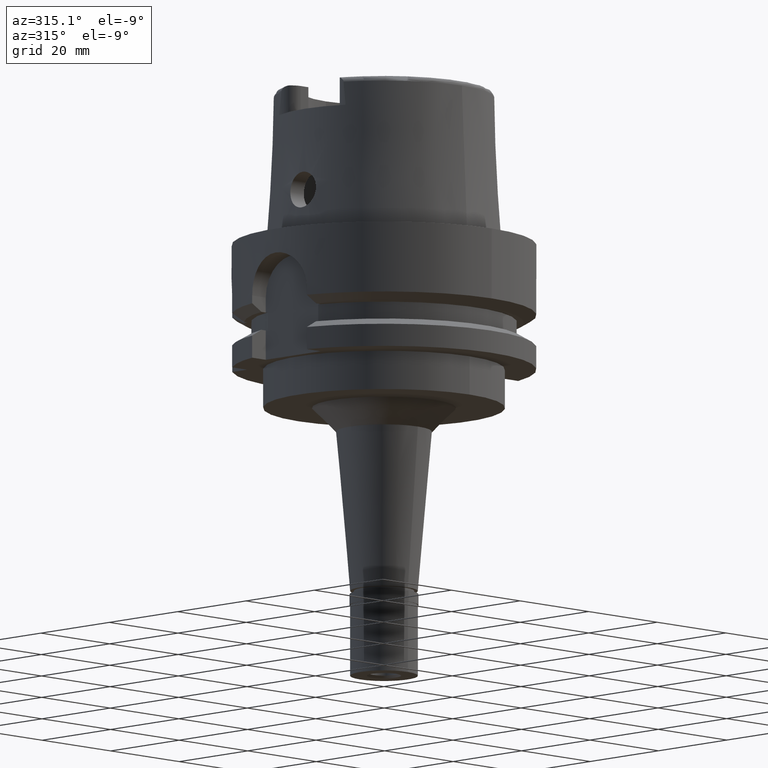
[diagram: clean part render]
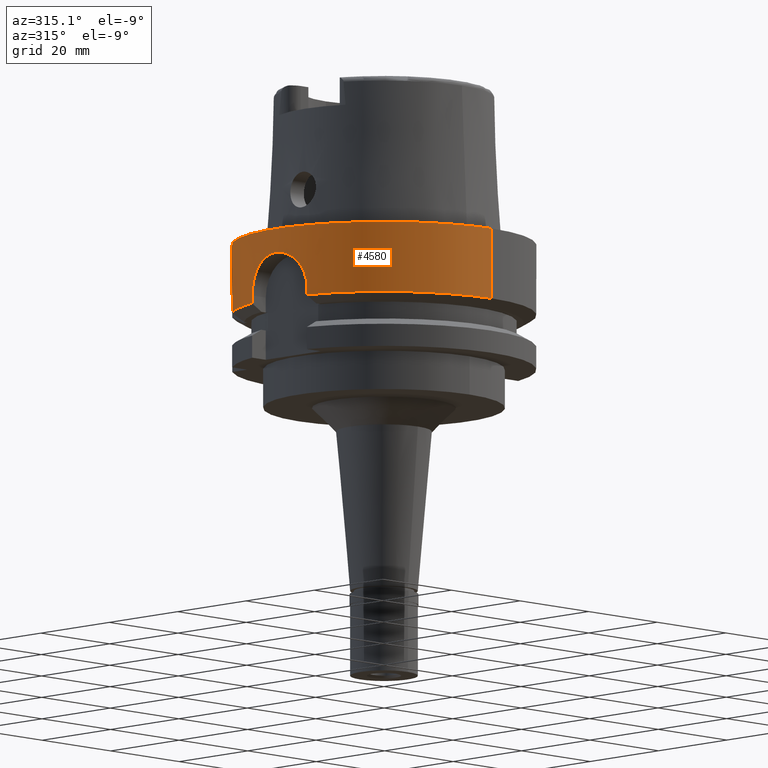
[diagram: same view with one face highlighted and labeled with its STEP entity id]
A machine part, auxiliary view. The second image highlights one B-rep face of the part: STEP entity #4580.
In plain terms, the highlighted cylindrical surface (partial cylindrical patch) has radius 31.5 mm, axis along (0, 0, -1).
Its self-contained STEP definition (entity closure, byte-faithful):
#2 = CIRCLE ( 'NONE', #1885, 31.50000000000000000 ) ;
#6 = CARTESIAN_POINT ( 'NONE',  ( -24.33618704727999926, 20.00000000000000000, -12.11171390365999834 ) ) ;
#63 = VERTEX_POINT ( 'NONE', #5252 ) ;
#83 = CARTESIAN_POINT ( 'NONE',  ( -22.42393119588176376, 22.12296565880928512, -6.683206095181872364 ) ) ;
#101 = CARTESIAN_POINT ( 'NONE',  ( 0.0000000000000000000, 31.50000000000000000, -5.210646728906999149E-14 ) ) ;
#127 = CARTESIAN_POINT ( 'NONE',  ( -30.81885635104165644, 6.516947870063453330, -8.352431642846200432 ) ) ;
#239 = CARTESIAN_POINT ( 'NONE',  ( -30.47046940401123649, 7.987562577556124310, -12.48389669311093009 ) ) ;
#248 = ORIENTED_EDGE ( 'NONE', *, *, #5236, .F. ) ;
#264 = CARTESIAN_POINT ( 'NONE',  ( -31.39671493540918590, -2.551760372348841788, -5.416713628323214458 ) ) ;
#268 = CARTESIAN_POINT ( 'NONE',  ( 0.0000000000000000000, 0.0000000000000000000, -8.526512829120999020E-14 ) ) ;
#274 = B_SPLINE_CURVE_WITH_KNOTS ( 'NONE', 3,
 ( #2247, #2546, #1216, #5139, #1676, #379, #4284, #858, #825, #4849, #3841, #3517, #3000, #2969, #2945, #1267, #3388, #2088, #510, #2573, #4253, #3940, #2221, #4714, #83, #3576, #410, #4654, #5238, #3808, #1372, #3967, #5539, #5116 ),
 .UNSPECIFIED., .F., .F.,
 ( 4, 2, 2, 1, 2, 2, 2, 2, 1, 1, 2, 2, 2, 2, 1, 1, 1, 2, 2, 4 ),
 ( 0.0000000000000000000, 0.1250000000000000555, 0.1874999999999996947, 0.2187499999999992784, 0.2343749999999991118, 0.2499999999999989175, 0.3749999999999982236, 0.4374999999999975575, 0.4687499999999972800, 0.4843749999999971134, 0.4921874999999972800, 0.4999999999999974465, 0.6249999999999994449, 0.6875000000000007772, 0.7187500000000014433, 0.7343750000000011102, 0.7421875000000013323, 0.7460937500000014433, 0.7500000000000015543, 1.000000000000000000 ),
 .UNSPECIFIED. ) ;
#294 = CARTESIAN_POINT ( 'NONE',  ( -30.72496427306840872, -6.945683112383507662, -9.021600376707157309 ) ) ;
#305 = ORIENTED_EDGE ( 'NONE', *, *, #545, .F. ) ;
#309 = EDGE_CURVE ( 'NONE', #1736, #2114, #274, .T. ) ;
#328 = CARTESIAN_POINT ( 'NONE',  ( -31.24778611378783211, 3.985028085199429970, -6.058127273272806868 ) ) ;
#332 = DIRECTION ( 'NONE',  ( 1.662386508811991509E-08, -6.330603035294974936E-08, 0.9999999999999978906 ) ) ;
#376 = CARTESIAN_POINT ( 'NONE',  ( -31.49677497999002540, -0.5190878657946060848, -5.012592346184119307 ) ) ;
#379 = CARTESIAN_POINT ( 'NONE',  ( -24.19538396489980059, 20.17014702692039663, -10.46826242228632609 ) ) ;
#410 = CARTESIAN_POINT ( 'NONE',  ( -22.22169668895883632, 22.32599394237791302, -6.471750597271110017 ) ) ;
#465 = VECTOR ( 'NONE', #913, 999.9999999999998863 ) ;
#480 = ORIENTED_EDGE ( 'NONE', *, *, #3311, .T. ) ;
#510 = CARTESIAN_POINT ( 'NONE',  ( -23.42376758610688370, 21.06127751492621769, -8.129929778619418457 ) ) ;
#545 = EDGE_CURVE ( 'NONE', #1964, #2648, #4934, .T. ) ;
#555 = CIRCLE ( 'NONE', #4783, 31.50000000000000000 ) ;
#603 = CARTESIAN_POINT ( 'NONE',  ( -31.02187907461290806, 5.470772986003484384, -7.156983136260197220 ) ) ;
#615 = DIRECTION ( 'NONE',  ( 0.0000000000000000000, -1.000000000000000000, 0.0000000000000000000 ) ) ;
#682 = CARTESIAN_POINT ( 'NONE',  ( -31.30329594183399422, -3.522533146540007376, -5.812390860483388266 ) ) ;
#703 = CARTESIAN_POINT ( 'NONE',  ( 0.0000000000000000000, -31.50000000000000000, -5.210646728906999149E-14 ) ) ;
#709 = CARTESIAN_POINT ( 'NONE',  ( -31.43404329783953344, 2.052651452422835643, -5.263364843615333299 ) ) ;
#740 = CARTESIAN_POINT ( 'NONE',  ( -31.44966231046775107, 1.798303139504380255, -5.200421182018059696 ) ) ;
#794 = DIRECTION ( 'NONE',  ( -0.9672125547036138915, -0.2539682539683034701, 0.0000000000000000000 ) ) ;
#825 = CARTESIAN_POINT ( 'NONE',  ( -24.12938252003408479, 20.24902381741144453, -10.13074365159392798 ) ) ;
#849 = CARTESIAN_POINT ( 'NONE',  ( 0.0000000000000000000, 0.0000000000000000000, -14.62250092523999889 ) ) ;
#858 = CARTESIAN_POINT ( 'NONE',  ( -24.14698290533160829, 20.22803438277437138, -10.21476230509764527 ) ) ;
#866 = ORIENTED_EDGE ( 'NONE', *, *, #2269, .F. ) ;
#889 = CARTESIAN_POINT ( 'NONE',  ( -20.00000000000000000, 24.33618704727999926, -5.000000000001000089 ) ) ;
#913 = DIRECTION ( 'NONE',  ( 3.142283928301055950E-07, 2.582394104988045658E-07, -0.9999999999999173994 ) ) ;
#1003 = VERTEX_POINT ( 'NONE', #3059 ) ;
#1011 = CARTESIAN_POINT ( 'NONE',  ( -30.59375341721909081, 7.502186701454739648, -10.20961224727279415 ) ) ;
#1063 = CARTESIAN_POINT ( 'NONE',  ( -30.72362744161308967, 6.956923324143974519, -9.014860810156298143 ) ) ;
#1129 = CARTESIAN_POINT ( 'NONE',  ( -31.48408220032727201, -1.033854126836437626, -5.062799230808407103 ) ) ;
#1153 = CARTESIAN_POINT ( 'NONE',  ( -30.46719547316000032, -8.000000000000000000, -13.00000000000000000 ) ) ;
#1183 = CARTESIAN_POINT ( 'NONE',  ( -31.28954085693241183, 3.637070170559372428, -5.873293608094983576 ) ) ;
#1188 = DIRECTION ( 'NONE',  ( 0.0000000000000000000, 0.0000000000000000000, 1.000000000000000000 ) ) ;
#1201 = ORIENTED_EDGE ( 'NONE', *, *, #309, .F. ) ;
#1209 = DIRECTION ( 'NONE',  ( 7.688788050064650779E-08, 2.928240117509864940E-07, -0.9999999999999541478 ) ) ;
#1216 = CARTESIAN_POINT ( 'NONE',  ( -24.31741330296263826, 20.02299288713010839, -11.41278700497229970 ) ) ;
#1254 = CARTESIAN_POINT ( 'NONE',  ( 0.0000000000000000000, 0.0000000000000000000, -14.62250092523999889 ) ) ;
#1267 = CARTESIAN_POINT ( 'NONE',  ( -23.53769548494326713, 20.93402648824516987, -8.358664469633170668 ) ) ;
#1332 = VERTEX_POINT ( 'NONE', #5091 ) ;
#1342 = ORIENTED_EDGE ( 'NONE', *, *, #3821, .F. ) ;
#1343 = CYLINDRICAL_SURFACE ( 'NONE', #4147, 31.50000000000000000 ) ;
#1372 = CARTESIAN_POINT ( 'NONE',  ( -22.11781925705654928, 22.42882633936847370, -6.370443672100182475 ) ) ;
#1388 = CARTESIAN_POINT ( 'NONE',  ( -30.53486776371219236, 7.738073463297647336, -10.95272763081510270 ) ) ;
#1414 = CARTESIAN_POINT ( 'NONE',  ( -31.12249084679720568, 4.863351863544854936, -6.646597155386570144 ) ) ;
#1521 = CARTESIAN_POINT ( 'NONE',  ( -31.32926138260560478, -3.284444989622653743, -5.700584998845050322 ) ) ;
#1550 = CARTESIAN_POINT ( 'NONE',  ( -31.34136434296008744, 3.159692071438414462, -5.649299242002840060 ) ) ;
#1583 = CARTESIAN_POINT ( 'NONE',  ( -31.15515489151722761, -4.653652403097416901, -6.487463098714763454 ) ) ;
#1637 = CARTESIAN_POINT ( 'NONE',  ( -30.53478131667754525, -7.738413905104802204, -10.95404087152322603 ) ) ;
#1676 = CARTESIAN_POINT ( 'NONE',  ( -24.23762488961385841, 20.11943627606970608, -10.72360843224762128 ) ) ;
#1695 = CARTESIAN_POINT ( 'NONE',  ( -30.46719547316000032, 8.000000000000000000, -13.00000000000000000 ) ) ;
#1736 = VERTEX_POINT ( 'NONE', #6 ) ;
#1838 = CARTESIAN_POINT ( 'NONE',  ( -30.85175722334937731, 6.359895374865690343, -8.139646148416114002 ) ) ;
#1861 = CARTESIAN_POINT ( 'NONE',  ( -30.46719547317000121, -8.000000000001000089, -14.62250092523999889 ) ) ;
#1885 = AXIS2_PLACEMENT_3D ( 'NONE', #1254, #3430, #2958 ) ;
#1903 = FACE_OUTER_BOUND ( 'NONE', #1954, .T. ) ;
#1954 = EDGE_LOOP ( 'NONE', ( #1201, #866, #5251, #2743, #3238, #248, #4289, #305, #2639, #3425, #480, #1342 ) ) ;
#1964 = VERTEX_POINT ( 'NONE', #4305 ) ;
#1971 = CARTESIAN_POINT ( 'NONE',  ( -31.21750876316024303, -4.210714186330711151, -6.196545001673451125 ) ) ;
#2003 = CIRCLE ( 'NONE', #2735, 31.50000000000000711 ) ;
#2004 = CARTESIAN_POINT ( 'NONE',  ( -31.17125954396172816, 4.540361878089598235, -6.412027064735279502 ) ) ;
#2030 = CARTESIAN_POINT ( 'NONE',  ( -24.33618704727999926, 20.00000000000000000, -14.62250092523999889 ) ) ;
#2034 = CARTESIAN_POINT ( 'NONE',  ( -31.26152885554538230, -3.870459631817934731, -5.997300790449740404 ) ) ;
#2060 = CARTESIAN_POINT ( 'NONE',  ( -30.57221970764694774, -7.589156868282732837, -10.45567407900735368 ) ) ;
#2088 = CARTESIAN_POINT ( 'NONE',  ( -23.44315733182589412, 21.03969576166392130, -8.167776853820770455 ) ) ;
#2114 = VERTEX_POINT ( 'NONE', #5474 ) ;
#2176 = CIRCLE ( 'NONE', #4704, 31.50000000000000000 ) ;
#2189 = CARTESIAN_POINT ( 'NONE',  ( -24.33618704727999926, 20.00000000000000000, -12.11171390365999834 ) ) ;
#2221 = CARTESIAN_POINT ( 'NONE',  ( -22.71655124985572982, 21.82280581254263652, -7.024865128160966421 ) ) ;
#2247 = CARTESIAN_POINT ( 'NONE',  ( -24.33618704727999926, 20.00000000000000000, -12.11171390365999834 ) ) ;
#2269 = EDGE_CURVE ( 'NONE', #63, #1736, #3459, .T. ) ;
#2319 = CARTESIAN_POINT ( 'NONE',  ( -31.05592143672404148, 5.274725093390645547, -6.979327917315838015 ) ) ;
#2399 = CARTESIAN_POINT ( 'NONE',  ( -30.59373675492793865, -7.502246412070891601, -10.20989868051045946 ) ) ;
#2416 = DIRECTION ( 'NONE',  ( 0.0000000000000000000, -2.672583210396999878E-14, -1.000000000000000000 ) ) ;
#2422 = CARTESIAN_POINT ( 'NONE',  ( -30.75521152764444466, -6.810977723647452464, -8.795226243407100242 ) ) ;
#2445 = CARTESIAN_POINT ( 'NONE',  ( 0.0000000000000000000, 31.50000000000000000, -8.526512829120999020E-14 ) ) ;
#2453 = CARTESIAN_POINT ( 'NONE',  ( -31.48718090486001131, 1.033466574519090964, -5.050045388237518473 ) ) ;
#2483 = CARTESIAN_POINT ( 'NONE',  ( -30.46719547316398291, -8.000000000001039169, -12.48317114867933952 ) ) ;
#2498 = B_SPLINE_CURVE_WITH_KNOTS ( 'NONE', 3,
 ( #3636, #5366, #239, #4942, #4393, #3977, #1388, #4457, #1011, #5304, #1063, #127, #1838, #3563, #2746, #603, #2319, #5281, #1414, #3140, #2004, #5002, #328, #1183, #4193, #5050, #1550, #4595, #3325, #709, #740, #2453, #3720, #4168, #376, #1129, #3661, #5453, #4538, #264, #5390, #3689, #1521, #682, #2034, #4137, #1971, #3273, #1583, #5423, #2856, #2943, #4564, #3301, #2422, #294, #5477, #5026, #2399, #2060, #1637, #4624, #4112, #2483, #1153 ),
 .UNSPECIFIED., .F., .F.,
 ( 4, 2, 2, 2, 2, 2, 2, 2, 2, 2, 2, 2, 2, 2, 2, 2, 2, 2, 2, 1, 2, 2, 2, 2, 2, 2, 2, 2, 2, 2, 2, 2, 4 ),
 ( 0.0000000000000000000, 0.03125000000000009714, 0.06250000000000019429, 0.09375000000000029143, 0.1250000000000003886, 0.1875000000000006661, 0.2187500000000006661, 0.2500000000000006661, 0.2812500000000007216, 0.2968750000000007216, 0.3125000000000006661, 0.3437500000000006106, 0.3593750000000006106, 0.3750000000000006106, 0.4062500000000005551, 0.4375000000000004441, 0.5000000000000003331, 0.5312500000000003331, 0.5625000000000003331, 0.5937500000000003331, 0.6093750000000002220, 0.6250000000000001110, 0.6562500000000001110, 0.6718750000000002220, 0.6875000000000002220, 0.7187500000000002220, 0.7500000000000002220, 0.8125000000000000000, 0.8437500000000000000, 0.8749999999999998890, 0.9062499999999998890, 0.9374999999999998890, 1.000000000000000000 ),
 .UNSPECIFIED. ) ;
#2546 = CARTESIAN_POINT ( 'NONE',  ( -24.33618704728000282, 20.00000000000000711, -11.76177398108625205 ) ) ;
#2548 = DIRECTION ( 'NONE',  ( -0.7725773665802099233, 0.6349206349206079070, 0.0000000000000000000 ) ) ;
#2573 = CARTESIAN_POINT ( 'NONE',  ( -23.41480056204280302, 21.07124600372210921, -8.112598717142777360 ) ) ;
#2639 = ORIENTED_EDGE ( 'NONE', *, *, #5075, .T. ) ;
#2648 = VERTEX_POINT ( 'NONE', #5204 ) ;
#2679 = VERTEX_POINT ( 'NONE', #3424 ) ;
#2735 = AXIS2_PLACEMENT_3D ( 'NONE', #3330, #1188, #2548 ) ;
#2743 = ORIENTED_EDGE ( 'NONE', *, *, #3035, .F. ) ;
#2746 = CARTESIAN_POINT ( 'NONE',  ( -30.95339523289258210, 5.845824316607018289, -7.532364397223996200 ) ) ;
#2762 = DIRECTION ( 'NONE',  ( 0.0000000000000000000, 0.0000000000000000000, -1.000000000000000000 ) ) ;
#2856 = CARTESIAN_POINT ( 'NONE',  ( -31.05571261454898035, -5.275953089424241682, -6.980406702780817874 ) ) ;
#2910 = VECTOR ( 'NONE', #332, 1000.000000000000114 ) ;
#2943 = CARTESIAN_POINT ( 'NONE',  ( -31.02184408994662945, -5.471005329709403675, -7.157139608571637446 ) ) ;
#2945 = CARTESIAN_POINT ( 'NONE',  ( -23.59119909214344446, 20.87366618392890416, -8.475360394206475689 ) ) ;
#2958 = DIRECTION ( 'NONE',  ( 0.0000000000000000000, 1.000000000000000000, 0.0000000000000000000 ) ) ;
#2969 = CARTESIAN_POINT ( 'NONE',  ( -23.69447380257824420, 20.75659041346670719, -8.711152247566838369 ) ) ;
#2972 = LINE ( 'NONE', #4599, #2910 ) ;
#2975 = EDGE_CURVE ( 'NONE', #5432, #2648, #555, .T. ) ;
#3000 = CARTESIAN_POINT ( 'NONE',  ( -23.75834693758074323, 20.68340060219739129, -8.871548500384792035 ) ) ;
#3035 = EDGE_CURVE ( 'NONE', #3892, #3735, #4592, .T. ) ;
#3045 = CARTESIAN_POINT ( 'NONE',  ( -24.33617949829029214, 20.00000000000000000, -13.78557191796221382 ) ) ;
#3059 = CARTESIAN_POINT ( 'NONE',  ( 0.0000000000000000000, 31.50000000000000000, -14.62250092523999889 ) ) ;
#3072 = CARTESIAN_POINT ( 'NONE',  ( -24.33618327278327342, 20.00000000000000000, -12.94864291081110430 ) ) ;
#3128 = CARTESIAN_POINT ( 'NONE',  ( 0.0000000000000000000, 0.0000000000000000000, 37.90000000000000568 ) ) ;
#3140 = CARTESIAN_POINT ( 'NONE',  ( -31.15505802712103289, 4.650159909545372727, -6.489012759517283513 ) ) ;
#3238 = ORIENTED_EDGE ( 'NONE', *, *, #4161, .T. ) ;
#3273 = CARTESIAN_POINT ( 'NONE',  ( -31.20241978222624724, -4.321057623378520951, -6.266097873759611581 ) ) ;
#3301 = CARTESIAN_POINT ( 'NONE',  ( -30.85032093071396275, -6.371617778920496633, -8.133432859164299700 ) ) ;
#3311 = EDGE_CURVE ( 'NONE', #1003, #1332, #2, .T. ) ;
#3325 = CARTESIAN_POINT ( 'NONE',  ( -31.39751812987280033, 2.551139220013741049, -5.413139625003759114 ) ) ;
#3330 = CARTESIAN_POINT ( 'NONE',  ( 0.0000000000000000000, 0.0000000000000000000, -14.62250092523999889 ) ) ;
#3388 = CARTESIAN_POINT ( 'NONE',  ( -23.47200866890658943, 21.00753865184078606, -8.224708379021981486 ) ) ;
#3408 = EDGE_CURVE ( 'NONE', #4426, #1003, #3957, .T. ) ;
#3424 = CARTESIAN_POINT ( 'NONE',  ( -30.46719547316000032, -8.000000000000000000, -13.00000000000000000 ) ) ;
#3425 = ORIENTED_EDGE ( 'NONE', *, *, #3408, .T. ) ;
#3430 = DIRECTION ( 'NONE',  ( 0.0000000000000000000, 0.0000000000000000000, 1.000000000000000000 ) ) ;
#3459 = B_SPLINE_CURVE_WITH_KNOTS ( 'NONE', 3,
 ( #2030, #3045, #3072, #2189 ),
 .UNSPECIFIED., .F., .F.,
 ( 4, 4 ),
 ( 0.0000000000000000000, 1.000000000000000000 ),
 .UNSPECIFIED. ) ;
#3517 = CARTESIAN_POINT ( 'NONE',  ( -23.93503632672616632, 20.47927319829861403, -9.361466146057312088 ) ) ;
#3563 = CARTESIAN_POINT ( 'NONE',  ( -30.91893340382808830, 6.024844406071601988, -7.730123615569184814 ) ) ;
#3576 = CARTESIAN_POINT ( 'NONE',  ( -22.33231214441316936, 22.21558574546473963, -6.584077845170627441 ) ) ;
#3636 = CARTESIAN_POINT ( 'NONE',  ( -30.46719547316000032, 8.000000000000000000, -13.00000000000000000 ) ) ;
#3661 = CARTESIAN_POINT ( 'NONE',  ( -31.47467690226035586, -1.288642860944581470, -5.100161930356441609 ) ) ;
#3689 = CARTESIAN_POINT ( 'NONE',  ( -31.36478180881843869, -2.918134935636442773, -5.550077343896375304 ) ) ;
#3697 = CARTESIAN_POINT ( 'NONE',  ( -30.46719534841000154, 8.000000475105998987, -14.62249661212000085 ) ) ;
#3712 = VECTOR ( 'NONE', #2416, 1000.000000000000000 ) ;
#3720 = CARTESIAN_POINT ( 'NONE',  ( -31.50001432462717332, 0.5184477199059164265, -4.999946910804170308 ) ) ;
#3735 = VERTEX_POINT ( 'NONE', #3697 ) ;
#3808 = CARTESIAN_POINT ( 'NONE',  ( -22.12490925080388848, 22.42183186651308446, -6.377242190824787826 ) ) ;
#3821 = EDGE_CURVE ( 'NONE', #2114, #1332, #4719, .T. ) ;
#3841 = CARTESIAN_POINT ( 'NONE',  ( -24.03292256500699509, 20.36379620739097973, -9.699742463524597014 ) ) ;
#3892 = VERTEX_POINT ( 'NONE', #4312 ) ;
#3940 = CARTESIAN_POINT ( 'NONE',  ( -23.04043817488113888, 21.48227363920933186, -7.458298269605085018 ) ) ;
#3957 = LINE ( 'NONE', #101, #5408 ) ;
#3967 = CARTESIAN_POINT ( 'NONE',  ( -21.51836336962323060, 23.01946672508874414, -5.799111691298601379 ) ) ;
#3977 = CARTESIAN_POINT ( 'NONE',  ( -30.51893368094319925, 7.800472392788579512, -11.20535269566406811 ) ) ;
#4093 = DIRECTION ( 'NONE',  ( 0.0000000000000000000, -1.000000000000000000, 0.0000000000000000000 ) ) ;
#4112 = CARTESIAN_POINT ( 'NONE',  ( -30.48036049987598162, -7.950356879501661034, -11.97071503445340213 ) ) ;
#4137 = CARTESIAN_POINT ( 'NONE',  ( -31.24713635872563344, -3.984901092393613453, -6.061804290023327546 ) ) ;
#4147 = AXIS2_PLACEMENT_3D ( 'NONE', #3128, #2762, #615 ) ;
#4161 = EDGE_CURVE ( 'NONE', #3892, #2679, #2498, .T. ) ;
#4168 = CARTESIAN_POINT ( 'NONE',  ( -31.49999281968111831, -0.2605282758869274518, -5.000027237281780224 ) ) ;
#4193 = CARTESIAN_POINT ( 'NONE',  ( -31.30298911225431979, 3.519547482547161987, -5.814547616546083653 ) ) ;
#4253 = CARTESIAN_POINT ( 'NONE',  ( -23.23364850844530238, 21.27232523724369528, -7.766570456687823309 ) ) ;
#4276 = DIRECTION ( 'NONE',  ( 0.0000000000000000000, 2.672583210396999878E-14, -1.000000000000000000 ) ) ;
#4284 = CARTESIAN_POINT ( 'NONE',  ( -24.17250346401301186, 20.19756269197604581, -10.34108878273139354 ) ) ;
#4289 = ORIENTED_EDGE ( 'NONE', *, *, #2975, .T. ) ;
#4305 = CARTESIAN_POINT ( 'NONE',  ( 0.0000000000000000000, -31.50000000000000000, -8.526512829120999020E-14 ) ) ;
#4312 = CARTESIAN_POINT ( 'NONE',  ( -30.46719547316000032, 8.000000000000000000, -13.00000000000000000 ) ) ;
#4393 = CARTESIAN_POINT ( 'NONE',  ( -30.49311703777105365, 7.900790839736396620, -11.71738137996472950 ) ) ;
#4426 = VERTEX_POINT ( 'NONE', #2445 ) ;
#4457 = CARTESIAN_POINT ( 'NONE',  ( -30.57233718637288078, 7.588684288696081026, -10.45425605571989891 ) ) ;
#4538 = CARTESIAN_POINT ( 'NONE',  ( -31.42616244446708151, -2.180633170623927253, -5.295127870765790057 ) ) ;
#4564 = CARTESIAN_POINT ( 'NONE',  ( -30.91857264590445808, -6.036448109160731157, -7.723297038473928566 ) ) ;
#4580 = ADVANCED_FACE ( 'NONE', ( #1903 ), #1343, .T. ) ;
#4592 = LINE ( 'NONE', #1695, #5421 ) ;
#4595 = CARTESIAN_POINT ( 'NONE',  ( -31.37653925858133874, 2.796761629568479179, -5.500262300763862022 ) ) ;
#4599 = CARTESIAN_POINT ( 'NONE',  ( -30.46719550012999989, -7.999999897286000028, -14.62250185769000055 ) ) ;
#4624 = CARTESIAN_POINT ( 'NONE',  ( -30.51876128078850314, -7.801143990768522052, -11.20858996875659663 ) ) ;
#4654 = CARTESIAN_POINT ( 'NONE',  ( -22.16545732071312003, 22.38176730805513870, -6.416422735594369264 ) ) ;
#4704 = AXIS2_PLACEMENT_3D ( 'NONE', #268, #5031, #4093 ) ;
#4714 = CARTESIAN_POINT ( 'NONE',  ( -22.60291037073405462, 21.94058341871248530, -6.885205567170932461 ) ) ;
#4719 = LINE ( 'NONE', #889, #465 ) ;
#4783 = AXIS2_PLACEMENT_3D ( 'NONE', #849, #5047, #794 ) ;
#4849 = CARTESIAN_POINT ( 'NONE',  ( -24.12064955927976584, 20.25942706254497239, -10.09043965756867323 ) ) ;
#4934 = LINE ( 'NONE', #703, #3712 ) ;
#4942 = CARTESIAN_POINT ( 'NONE',  ( -30.48347368812358127, 7.937788957678149515, -11.97101903904906450 ) ) ;
#5002 = CARTESIAN_POINT ( 'NONE',  ( -31.21807093784279274, 4.210852298995213516, -6.192810637432878629 ) ) ;
#5026 = CARTESIAN_POINT ( 'NONE',  ( -30.64173940436723242, -7.303713858860326980, -9.725163879038730030 ) ) ;
#5031 = DIRECTION ( 'NONE',  ( 0.0000000000000000000, 0.0000000000000000000, -1.000000000000000000 ) ) ;
#5047 = DIRECTION ( 'NONE',  ( 0.0000000000000000000, 0.0000000000000000000, 1.000000000000000000 ) ) ;
#5050 = CARTESIAN_POINT ( 'NONE',  ( -31.32884523643526009, 3.281432308505551898, -5.702786093802393985 ) ) ;
#5075 = EDGE_CURVE ( 'NONE', #1964, #4426, #2176, .T. ) ;
#5091 = CARTESIAN_POINT ( 'NONE',  ( -19.99999697632999940, 24.33618953219000147, -14.62251175975000095 ) ) ;
#5116 = CARTESIAN_POINT ( 'NONE',  ( -20.00000000000000000, 24.33618704727999926, -5.000000000001000089 ) ) ;
#5139 = CARTESIAN_POINT ( 'NONE',  ( -24.26109207001055523, 20.09112463478729893, -10.89517135214223842 ) ) ;
#5204 = CARTESIAN_POINT ( 'NONE',  ( 0.0000000000000000000, -31.50000000000000000, -14.62250092523999889 ) ) ;
#5236 = EDGE_CURVE ( 'NONE', #5432, #2679, #2972, .T. ) ;
#5238 = CARTESIAN_POINT ( 'NONE',  ( -22.14115509706811125, 22.40579017599367262, -6.392890423629578933 ) ) ;
#5251 = ORIENTED_EDGE ( 'NONE', *, *, #5417, .T. ) ;
#5252 = CARTESIAN_POINT ( 'NONE',  ( -24.33618704727999926, 20.00000000000000000, -14.62250092523999889 ) ) ;
#5281 = CARTESIAN_POINT ( 'NONE',  ( -31.10597520402564342, 4.967801513773197009, -6.727898206205598974 ) ) ;
#5304 = CARTESIAN_POINT ( 'NONE',  ( -30.66617645225587552, 7.202626994886299983, -9.478632443040799771 ) ) ;
#5366 = CARTESIAN_POINT ( 'NONE',  ( -30.46719547316397936, 8.000000000001028511, -12.74141073775093425 ) ) ;
#5390 = CARTESIAN_POINT ( 'NONE',  ( -31.37578599808134427, -2.797363533014404435, -5.503890397308018656 ) ) ;
#5408 = VECTOR ( 'NONE', #4276, 1000.000000000000000 ) ;
#5417 = EDGE_CURVE ( 'NONE', #63, #3735, #2003, .T. ) ;
#5421 = VECTOR ( 'NONE', #1209, 1000.000000000000114 ) ;
#5423 = CARTESIAN_POINT ( 'NONE',  ( -31.12245664773315568, -4.866791469667909986, -6.645082546182676353 ) ) ;
#5432 = VERTEX_POINT ( 'NONE', #1861 ) ;
#5453 = CARTESIAN_POINT ( 'NONE',  ( -31.44949716578835464, -1.801392390295718737, -5.201080300967745096 ) ) ;
#5474 = CARTESIAN_POINT ( 'NONE',  ( -20.00000000000000000, 24.33618704727999926, -5.000000000001000089 ) ) ;
#5477 = CARTESIAN_POINT ( 'NONE',  ( -30.66829437905567701, -7.191777482553351142, -9.485901320412189364 ) ) ;
#5539 = CARTESIAN_POINT ( 'NONE',  ( -20.81549775002711300, 23.66599352152000435, -5.345270317927175441 ) ) ;